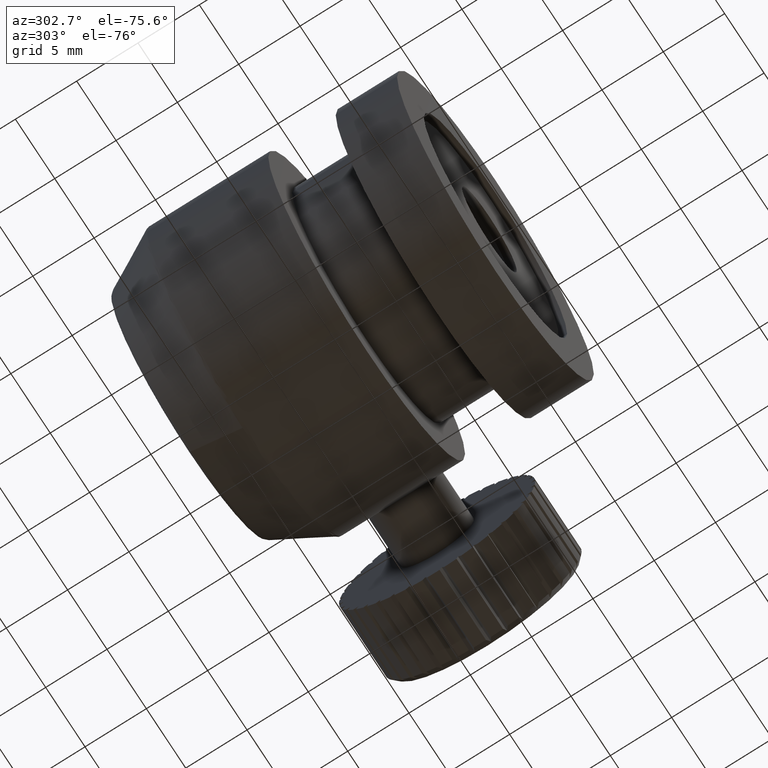
[diagram: clean part render]
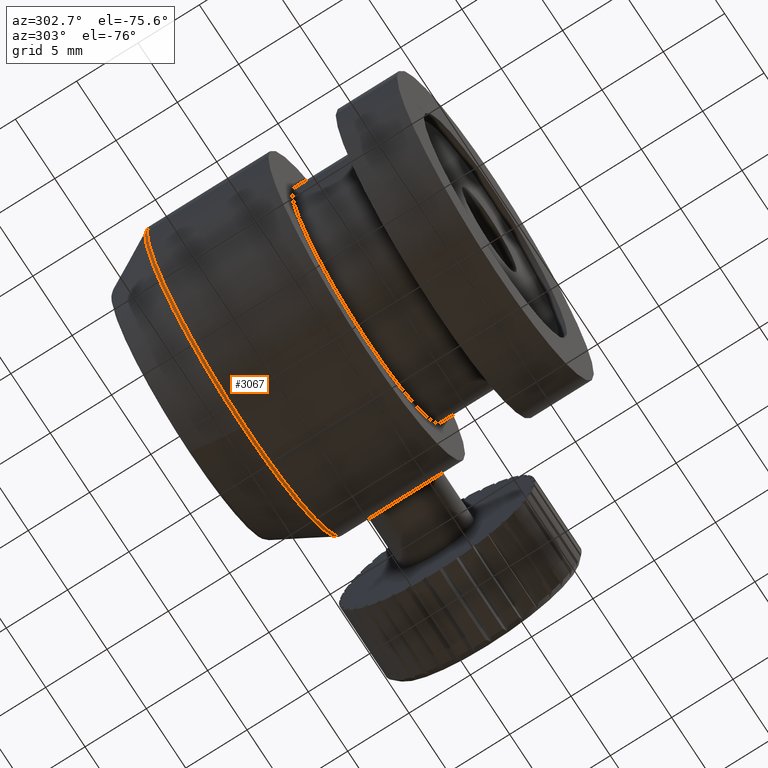
[diagram: same view with one face highlighted and labeled with its STEP entity id]
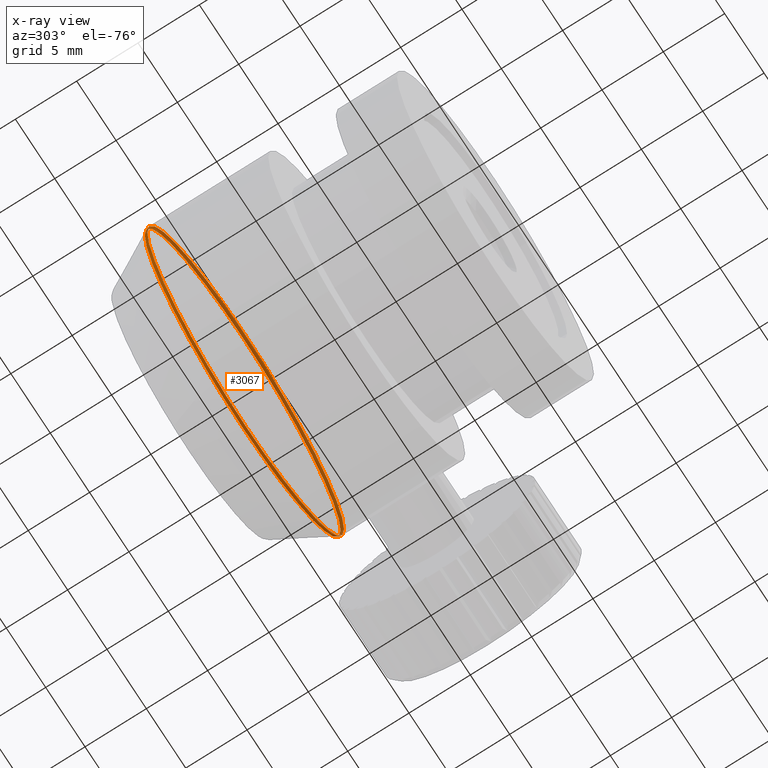
[diagram: x-ray of the same camera — body ghosted, the highlighted face saturated]
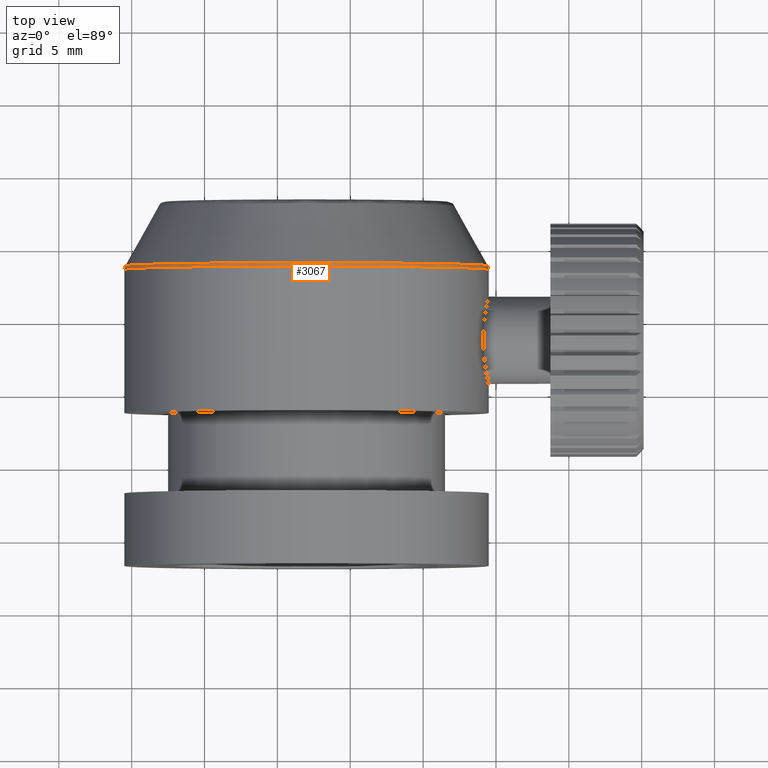
[diagram: same view with one face highlighted and labeled with its STEP entity id]
A machine part, auxiliary view. The second image highlights one B-rep face of the part: STEP entity #3067.
The next image is the same camera in x-ray: the body ghosted, the highlighted face saturated — about 51% of this face is hidden behind the body in this view.
A second angle (top view) of the same face is appended — the face is thin or edge-on in the first view.
In plain terms, the highlighted face is a freeform B-spline surface patch.
Its self-contained STEP definition (entity closure, byte-faithful):
#85 = CARTESIAN_POINT ( 'NONE',  ( -27.87248429526527360, 8.799646391880758145, -13.56873291524618530 ) ) ;
#110 = CARTESIAN_POINT ( 'NONE',  ( 21.95881184167109268, 8.724962965656803959, 11.34691515322199962 ) ) ;
#135 = CARTESIAN_POINT ( 'NONE',  ( -2.998327019143730343, 8.799646391880758145, 11.30542436087535663 ) ) ;
#238 = CARTESIAN_POINT ( 'NONE',  ( -2.998327019143730343, 8.799646391880758145, -1.131654277185413671 ) ) ;
#321 = ORIENTED_EDGE ( 'NONE', *, *, #2033, .F. ) ;
#466 = CARTESIAN_POINT ( 'NONE',  ( -2.998327019143730343, 8.556824926291442424, -1.131654277185413671 ) ) ;
#473 = CARTESIAN_POINT ( 'NONE',  ( 21.87583025697781380, 8.799646391880758145, 11.30542436087535840 ) ) ;
#476 = VERTEX_POINT ( 'NONE', #3218 ) ;
#498 = CARTESIAN_POINT ( 'NONE',  ( -27.95546587995855603, 8.724962965656803959, -13.61022370759282474 ) ) ;
#546 = CARTESIAN_POINT ( 'NONE',  ( -2.998327019143730343, 8.556824926291442424, 11.36834572281458833 ) ) ;
#565 = CIRCLE ( 'NONE', #2219, 12.43707863806077185 ) ;
#862 = CARTESIAN_POINT ( 'NONE',  ( -2.998327019143729899, 8.724962965656803959, -13.61022370759282296 ) ) ;
#1125 = EDGE_CURVE ( 'NONE', #1659, #1659, #565, .T. ) ;
#1240 = ORIENTED_EDGE ( 'NONE', *, *, #1125, .T. ) ;
#1282 = CARTESIAN_POINT ( 'NONE',  ( -2.998327019143730343, 8.799646391880758145, -13.56873291524618352 ) ) ;
#1628 = DIRECTION ( 'NONE',  ( -0.000000000000000000, -1.000000000000000000, -0.000000000000000000 ) ) ;
#1632 = CARTESIAN_POINT ( 'NONE',  ( 22.00167298085627010, 8.556824926291440647, 11.36834572281458833 ) ) ;
#1659 = VERTEX_POINT ( 'NONE', #1710 ) ;
#1679 = CARTESIAN_POINT ( 'NONE',  ( -27.99832701914372990, 8.642259696742943476, 11.36834572281458833 ) ) ;
#1710 = CARTESIAN_POINT ( 'NONE',  ( -2.998327019143730343, 8.799646391880758145, 11.30542436087535840 ) ) ;
#1807 = DIRECTION ( 'NONE',  ( 0.000000000000000000, 0.000000000000000000, 1.000000000000000000 ) ) ;
#2033 = EDGE_CURVE ( 'NONE', #476, #476, #2708, .T. ) ;
#2069 = CARTESIAN_POINT ( 'NONE',  ( 22.00167298085627010, 8.642259696742943476, 11.36834572281458833 ) ) ;
#2123 = CARTESIAN_POINT ( 'NONE',  ( -2.998327019143730343, 8.799646391880758145, 11.30542436087535663 ) ) ;
#2219 = AXIS2_PLACEMENT_3D ( 'NONE', #238, #3814, #1807 ) ;
#2341 = EDGE_LOOP ( 'NONE', ( #1240 ) ) ;
#2410 = CARTESIAN_POINT ( 'NONE',  ( -27.99832701914373345, 8.556824926291440647, -13.63165427718541522 ) ) ;
#2436 = CARTESIAN_POINT ( 'NONE',  ( -2.998327019143729899, 8.642259696742939923, 11.36834572281458300 ) ) ;
#2493 = CARTESIAN_POINT ( 'NONE',  ( -2.998327019143730343, 8.556824926291442424, 11.36834572281458833 ) ) ;
#2516 = CARTESIAN_POINT ( 'NONE',  ( 22.00167298085627010, 8.642259696742943476, -13.63165427718541700 ) ) ;
#2708 = CIRCLE ( 'NONE', #4779, 12.50000000000000000 ) ;
#2858 = CARTESIAN_POINT ( 'NONE',  ( -27.95546587995855603, 8.724962965656803959, 11.34691515322199962 ) ) ;
#2888 = FACE_OUTER_BOUND ( 'NONE', #4475, .T. ) ;
#2912 = CARTESIAN_POINT ( 'NONE',  ( -27.87248429526527360, 8.799646391880758145, 11.30542436087535840 ) ) ;
#3067 = ADVANCED_FACE ( 'NONE', ( #2888, #3239 ), #3163, .T. ) ;
#3163 =( BOUNDED_SURFACE ( )  B_SPLINE_SURFACE ( 3, 3, ( 
 ( #2123, #473, #4887, #1282, #85, #2912, #135 ),
 ( #4497, #110, #4052, #862, #498, #2858, #4418 ),
 ( #3317, #2069, #2516, #4100, #3657, #1679, #2436 ),
 ( #2493, #1632, #4912, #3262, #2410, #4473, #546 ) ),
 .UNSPECIFIED., .F., .T., .F. ) 
 B_SPLINE_SURFACE_WITH_KNOTS ( ( 4, 4 ),
 ( 4, 3, 4 ),
 ( 0.000000000000000000, 1.000000000000000000 ),
 ( 0.000000000000000000, 0.5000000000000000000, 1.000000000000000000 ),
 .UNSPECIFIED. ) 
 GEOMETRIC_REPRESENTATION_ITEM ( )  RATIONAL_B_SPLINE_SURFACE ( (
 ( 1.000000000000000000, 0.3333333333333333148, 0.3333333333333333148, 1.000000000000000000, 0.3333333333333333148, 0.3333333333333333148, 1.000000000000000000),
 ( 0.9786854811516194630, 0.3262284937172064692, 0.3262284937172064692, 0.9786854811516194630, 0.3262284937172064692, 0.3262284937172064692, 0.9786854811516194630),
 ( 0.9786854811516194630, 0.3262284937172064692, 0.3262284937172064692, 0.9786854811516194630, 0.3262284937172064692, 0.3262284937172064692, 0.9786854811516194630),
 ( 1.000000000000000000, 0.3333333333333333148, 0.3333333333333333148, 1.000000000000000000, 0.3333333333333333148, 0.3333333333333333148, 1.000000000000000000) ) ) 
 REPRESENTATION_ITEM ( '' )  SURFACE ( )  );
#3218 = CARTESIAN_POINT ( 'NONE',  ( -2.998327019143730343, 8.556824926291442424, -13.63165427718541345 ) ) ;
#3239 = FACE_OUTER_BOUND ( 'NONE', #2341, .T. ) ;
#3262 = CARTESIAN_POINT ( 'NONE',  ( -2.998327019143730343, 8.556824926291442424, -13.63165427718541522 ) ) ;
#3317 = CARTESIAN_POINT ( 'NONE',  ( -2.998327019143729899, 8.642259696742939923, 11.36834572281458300 ) ) ;
#3628 = DIRECTION ( 'NONE',  ( 0.000000000000000000, 0.000000000000000000, -1.000000000000000000 ) ) ;
#3657 = CARTESIAN_POINT ( 'NONE',  ( -27.99832701914372990, 8.642259696742943476, -13.63165427718541700 ) ) ;
#3814 = DIRECTION ( 'NONE',  ( -0.000000000000000000, -1.000000000000000000, -0.000000000000000000 ) ) ;
#4052 = CARTESIAN_POINT ( 'NONE',  ( 21.95881184167109268, 8.724962965656803959, -13.61022370759282474 ) ) ;
#4100 = CARTESIAN_POINT ( 'NONE',  ( -2.998327019143729899, 8.642259696742939923, -13.63165427718541167 ) ) ;
#4418 = CARTESIAN_POINT ( 'NONE',  ( -2.998327019143729899, 8.724962965656803959, 11.34691515322199429 ) ) ;
#4473 = CARTESIAN_POINT ( 'NONE',  ( -27.99832701914373345, 8.556824926291440647, 11.36834572281458833 ) ) ;
#4475 = EDGE_LOOP ( 'NONE', ( #321 ) ) ;
#4497 = CARTESIAN_POINT ( 'NONE',  ( -2.998327019143729899, 8.724962965656803959, 11.34691515322199429 ) ) ;
#4779 = AXIS2_PLACEMENT_3D ( 'NONE', #466, #1628, #3628 ) ;
#4887 = CARTESIAN_POINT ( 'NONE',  ( 21.87583025697781380, 8.799646391880758145, -13.56873291524618530 ) ) ;
#4912 = CARTESIAN_POINT ( 'NONE',  ( 22.00167298085627010, 8.556824926291440647, -13.63165427718541522 ) ) ;